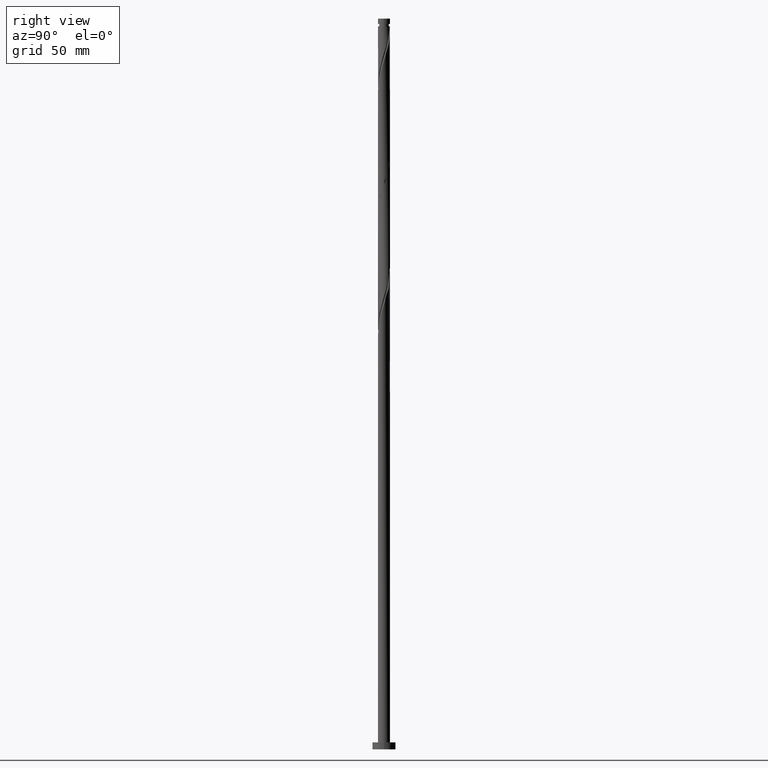
[diagram: clean part render]
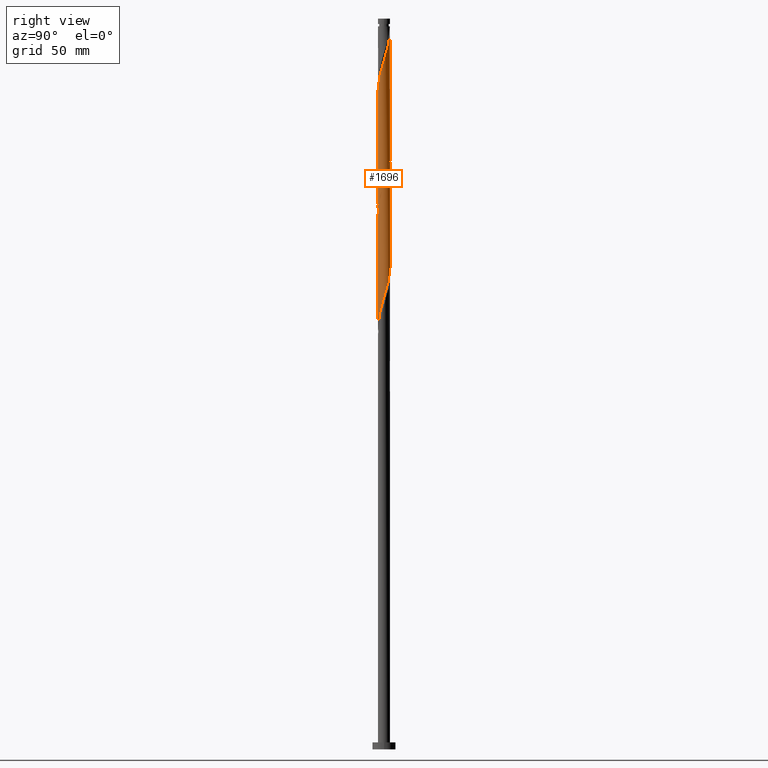
[diagram: same view with one face highlighted and labeled with its STEP entity id]
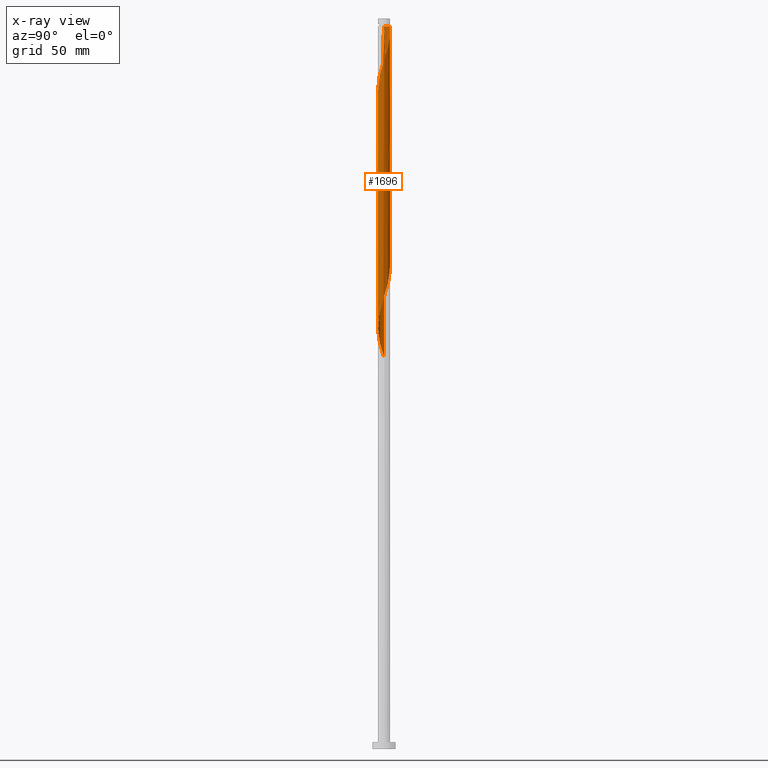
[diagram: x-ray of the same camera — body ghosted, the highlighted face saturated]
A machine part, right view. The second image highlights one B-rep face of the part: STEP entity #1696.
The next image is the same camera in x-ray: the body ghosted, the highlighted face saturated — about 0% of this face is hidden behind the body in this view.
In plain terms, the highlighted cylindrical surface (bore or boss wall) has radius 2.6 mm, axis along (-0, -0, -1).
Its self-contained STEP definition (entity closure, byte-faithful):
#2 = CARTESIAN_POINT ( 'NONE',  ( -1.894092998067532507, -1.805057120547471250, 276.9614839780932130 ) ) ;
#4 = CARTESIAN_POINT ( 'NONE',  ( -0.8044841181609289071, -2.489703756954709579, 179.4614839780932130 ) ) ;
#56 = VECTOR ( 'NONE', #551, 1000.000000000000000 ) ;
#57 = LINE ( 'NONE', #1705, #81 ) ;
#71 = CARTESIAN_POINT ( 'NONE',  ( 2.592198152564239688, 0.3554268301776134509, 248.8364839780932130 ) ) ;
#79 = CARTESIAN_POINT ( 'NONE',  ( 0.3554268301776135619, -2.592198152564239688, 235.7114839780932130 ) ) ;
#81 = VECTOR ( 'NONE', #1713, 1000.000000000000000 ) ;
#89 = CARTESIAN_POINT ( 'NONE',  ( -1.993166516690924706, -1.669517066921498705, 227.2739839780931561 ) ) ;
#100 = CARTESIAN_POINT ( 'NONE',  ( -0.5173934672955257108, 2.548000000000805620, 311.6489839780929856 ) ) ;
#104 = CARTESIAN_POINT ( 'NONE',  ( -1.338325226974176774, -2.248267128392905434, 177.5864839780931561 ) ) ;
#109 = FACE_OUTER_BOUND ( 'NONE', #1467, .T. ) ;
#110 = CIRCLE ( 'NONE', #230, 2.599999999999973888 ) ;
#116 = CARTESIAN_POINT ( 'NONE',  ( -2.489703756954709579, 0.8044841181609286851, 218.8364839780931845 ) ) ;
#125 = CARTESIAN_POINT ( 'NONE',  ( -2.600000000000004086, 1.682880964552032780E-15, 270.5994669001871102 ) ) ;
#127 = CARTESIAN_POINT ( 'NONE',  ( 0.9233338913868915920, -2.448116422636779976, 185.0864839780932130 ) ) ;
#139 = CARTESIAN_POINT ( 'NONE',  ( 0.8044841181609290182, 2.489703756954709579, 205.7114839780931845 ) ) ;
#147 = CARTESIAN_POINT ( 'NONE',  ( 0.5173934672954454417, -2.548000000000004039, 285.3989839780932130 ) ) ;
#149 = CARTESIAN_POINT ( 'NONE',  ( -2.606296243045289174, 0.2303028164299627534, 220.7114839780931845 ) ) ;
#158 = CARTESIAN_POINT ( 'NONE',  ( 0.9233338913868945896, 2.448116422636781753, 306.9614839780930993 ) ) ;
#175 = VECTOR ( 'NONE', #196, 1000.000000000000000 ) ;
#182 = CARTESIAN_POINT ( 'NONE',  ( -2.248267128392905434, 1.338325226974176552, 269.4614839780932130 ) ) ;
#187 = CARTESIAN_POINT ( 'NONE',  ( -1.894092998067529177, 1.805057120547469474, 267.5864839780932130 ) ) ;
#188 = EDGE_CURVE ( 'NONE', #354, #544, #1005, .T. ) ;
#196 = DIRECTION ( 'NONE',  ( -0.000000000000000000, -0.000000000000000000, -1.000000000000000000 ) ) ;
#206 = CARTESIAN_POINT ( 'NONE',  ( -1.071404672567552563, -2.368985442673807285, 231.0239839780931845 ) ) ;
#219 = CARTESIAN_POINT ( 'NONE',  ( 2.248267128392904990, -1.338325226974176774, 243.2114839780932698 ) ) ;
#227 = CARTESIAN_POINT ( 'NONE',  ( -1.571691173760822569, -2.071180063230216639, 229.1489839780931561 ) ) ;
#230 = AXIS2_PLACEMENT_3D ( 'NONE', #1166, #1736, #1478 ) ;
#237 = CARTESIAN_POINT ( 'NONE',  ( 1.669517066921498483, -1.993166516690925150, 240.3989839780931845 ) ) ;
#239 = EDGE_CURVE ( 'NONE', #1625, #1253, #57, .T. ) ;
#246 = CARTESIAN_POINT ( 'NONE',  ( -1.071404672567552563, -2.368985442673807285, 178.5239839780931845 ) ) ;
#255 = CARTESIAN_POINT ( 'NONE',  ( 2.071180063230221524, 1.571691173760824567, 302.2739839780931561 ) ) ;
#256 = CARTESIAN_POINT ( 'NONE',  ( -2.600000000000000089, 3.041126355010900916E-15, 168.9485010559992304 ) ) ;
#262 = CARTESIAN_POINT ( 'NONE',  ( -2.599999999999999645, -9.739067222795645359E-16, 273.9485010559992020 ) ) ;
#266 = CARTESIAN_POINT ( 'NONE',  ( 2.368985442673811725, 1.071404672567553007, 300.3989839780932130 ) ) ;
#269 = CARTESIAN_POINT ( 'NONE',  ( 1.805057120547469696, 1.894092998067528510, 201.9614839780931845 ) ) ;
#274 = CARTESIAN_POINT ( 'NONE',  ( -2.248267128392909431, -1.338325226974177440, 275.0864839780930424 ) ) ;
#275 = CARTESIAN_POINT ( 'NONE',  ( -1.669517066921498927, 1.993166516690924706, 214.1489839780931845 ) ) ;
#283 = CARTESIAN_POINT ( 'NONE',  ( -2.520157287600509832, -0.6393803607822529100, 171.0239839780931845 ) ) ;
#315 = CARTESIAN_POINT ( 'NONE',  ( -2.599999999999999645, -9.739067222795645359E-16, 273.9485010559992020 ) ) ;
#320 = EDGE_CURVE ( 'NONE', #1316, #544, #468, .T. ) ;
#352 = CARTESIAN_POINT ( 'NONE',  ( 1.805057120547469696, 1.894092998067528510, 254.4614839780932130 ) ) ;
#354 = VERTEX_POINT ( 'NONE', #905 ) ;
#357 = CARTESIAN_POINT ( 'NONE',  ( 2.489703756954709579, -0.8044841181609289071, 245.0864839780931845 ) ) ;
#364 = CARTESIAN_POINT ( 'NONE',  ( 0.06256200687382534875, -2.599247197804763765, 234.7739839780931277 ) ) ;
#371 = CARTESIAN_POINT ( 'NONE',  ( 2.547999999999999154, -0.5173934672954457747, 246.0239839780931277 ) ) ;
#380 = CARTESIAN_POINT ( 'NONE',  ( 2.314696167735579735, 1.184137513581179801, 251.6489839780932130 ) ) ;
#385 = CARTESIAN_POINT ( 'NONE',  ( -1.669517066921501369, -1.993166516690927148, 277.8989839780930993 ) ) ;
#386 = CARTESIAN_POINT ( 'NONE',  ( 2.547999999999999154, -0.5173934672954457747, 193.5239839780932130 ) ) ;
#395 = CARTESIAN_POINT ( 'NONE',  ( 2.181275912834383934, -1.444941135775472008, 291.9614839780931561 ) ) ;
#398 = CARTESIAN_POINT ( 'NONE',  ( -1.805057120547469474, -1.894092998067529177, 175.7114839780932414 ) ) ;
#404 = CARTESIAN_POINT ( 'NONE',  ( -2.489703756954713576, -0.8044841181609289071, 273.2114839780930993 ) ) ;
#408 = VERTEX_POINT ( 'NONE', #1733 ) ;
#412 = CARTESIAN_POINT ( 'NONE',  ( -0.5173934672955257108, 2.548000000000805620, 311.6489839780929856 ) ) ;
#414 = CARTESIAN_POINT ( 'NONE',  ( -1.894092998067529177, 1.805057120547469474, 215.0864839780931845 ) ) ;
#421 = CARTESIAN_POINT ( 'NONE',  ( 2.548000000000004039, 0.5173934672954453307, 298.5239839780931561 ) ) ;
#424 = EDGE_CURVE ( 'NONE', #544, #1253, #843, .T. ) ;
#467 = CARTESIAN_POINT ( 'NONE',  ( -1.184137513581180023, 2.314696167735580179, 264.7739839780932130 ) ) ;
#468 =( BOUNDED_CURVE ( )  B_SPLINE_CURVE ( 2, ( #315, #1149, #871, #879, #1434, #182, #1443, #187, #742, #599, #467, #1310, #618, #1631, #626, #1172, #1739, #1614, #1334, #900, #761, #352, #484, #1038, #380, #512, #768, #71, #1756, #1748, #1314 ),
 .UNSPECIFIED., .F., .T. ) 
 B_SPLINE_CURVE_WITH_KNOTS ( ( 3, 2, 2, 2, 2, 2, 2, 2, 2, 2, 2, 2, 2, 2, 2, 3 ),
 ( 0.4295303401299217505, 0.4375000000000000000, 0.4464285714285714524, 0.4553571428571428492, 0.4642857142857143016, 0.4732142857142856984, 0.4821428571428571508, 0.4910714285714285476, 0.5000000000000000000, 0.5089285714285713969, 0.5178571428571429047, 0.5267857142857143016, 0.5357142857142856984, 0.5446428571428570953, 0.5535714285714286031, 0.5545303401299218615 ),
 .UNSPECIFIED. ) 
 CURVE ( )  GEOMETRIC_REPRESENTATION_ITEM ( )  RATIONAL_B_SPLINE_CURVE ( ( 0.9079949616362197329, 0.9039886423360823375, 0.9090909090909493617, 0.9033747362666241232, 0.9090909090909493617, 0.9033747362666241232, 0.9090909090909493617, 0.9033747362666241232, 0.9090909090909493617, 0.9033747362666241232, 0.9090909090909493617, 0.9033747362666241232, 0.9090909090909493617, 0.9033747362666241232, 0.9090909090909493617, 0.9033747362666241232, 0.9090909090909493617, 0.9033747362666241232, 0.9090909090909493617, 0.9033747362666241232, 0.9090909090909493617, 0.9033747362666241232, 0.9090909090909493617, 0.9033747362666241232, 0.9090909090909493617, 0.9033747362666241232, 0.9090909090909493617, 0.9033747362666241232, 0.9090909090909493617, 0.9084770030214912584, 0.9079949616362197329 ) ) 
 REPRESENTATION_ITEM ( '' )  );
#484 = CARTESIAN_POINT ( 'NONE',  ( 1.993166516690925150, 1.669517066921498483, 253.5239839780931277 ) ) ;
#497 = CARTESIAN_POINT ( 'NONE',  ( 2.599999999999999645, 3.940404209682836032E-15, 247.6985010559992304 ) ) ;
#512 = CARTESIAN_POINT ( 'NONE',  ( 2.448116422636779976, 0.9233338913868913700, 250.7114839780932414 ) ) ;
#520 = CARTESIAN_POINT ( 'NONE',  ( -2.368985442673811725, -1.071404672567553451, 274.1489839780931561 ) ) ;
#521 = CARTESIAN_POINT ( 'NONE',  ( 2.181275912834381270, 1.444941135775468677, 200.0864839780932130 ) ) ;
#526 = ORIENTED_EDGE ( 'NONE', *, *, #320, .F. ) ;
#530 = CARTESIAN_POINT ( 'NONE',  ( 1.071404672567553229, -2.368985442673811725, 287.2739839780930993 ) ) ;
#533 = CARTESIAN_POINT ( 'NONE',  ( 1.184137513581179801, -2.314696167735579735, 186.0239839780931277 ) ) ;
#539 = CARTESIAN_POINT ( 'NONE',  ( 2.606296243045292726, 0.2303028164299620595, 297.5864839780930993 ) ) ;
#540 = CARTESIAN_POINT ( 'NONE',  ( 2.599247197804763765, 0.06256200687382520997, 195.3989839780931277 ) ) ;
#544 = VERTEX_POINT ( 'NONE', #1386 ) ;
#546 = AXIS2_PLACEMENT_3D ( 'NONE', #708, #1706, #1554 ) ;
#547 = CARTESIAN_POINT ( 'NONE',  ( 1.338325226974177218, -2.248267128392909431, 288.2114839780930993 ) ) ;
#551 = DIRECTION ( 'NONE',  ( -0.000000000000000000, -0.000000000000000000, -1.000000000000000000 ) ) ;
#557 = CARTESIAN_POINT ( 'NONE',  ( 0.3554268301776155048, 2.592198152564242797, 308.8364839780931561 ) ) ;
#558 = CARTESIAN_POINT ( 'NONE',  ( -2.248267128392905434, 1.338325226974176552, 216.9614839780932414 ) ) ;
#581 = EDGE_CURVE ( 'NONE', #408, #1316, #1242, .T. ) ;
#599 = CARTESIAN_POINT ( 'NONE',  ( -1.444941135775469343, 2.181275912834380826, 265.7114839780931561 ) ) ;
#608 = CARTESIAN_POINT ( 'NONE',  ( 2.600000000000000089, 3.184081677783118191E-16, 315.0000000000000000 ) ) ;
#618 = CARTESIAN_POINT ( 'NONE',  ( -0.6393803607822529100, 2.520157287600509832, 262.8989839780931561 ) ) ;
#626 = CARTESIAN_POINT ( 'NONE',  ( -0.06256200687382565406, 2.599247197804763765, 261.0239839780931561 ) ) ;
#636 = CARTESIAN_POINT ( 'NONE',  ( 1.444941135775468899, -2.181275912834381270, 239.4614839780931561 ) ) ;
#661 = CARTESIAN_POINT ( 'NONE',  ( 1.338325226974176996, 2.248267128392904990, 203.8364839780931845 ) ) ;
#667 = CYLINDRICAL_SURFACE ( 'NONE', #546, 2.600000000000000089 ) ;
#673 = CARTESIAN_POINT ( 'NONE',  ( -0.06256200687382565406, 2.599247197804763765, 208.5239839780931277 ) ) ;
#684 = CARTESIAN_POINT ( 'NONE',  ( -2.547999999999999154, 0.5173934672954455527, 219.7739839780931561 ) ) ;
#691 = CARTESIAN_POINT ( 'NONE',  ( 1.571691173760824567, -2.071180063230221524, 289.1489839780930993 ) ) ;
#695 = CARTESIAN_POINT ( 'NONE',  ( 1.571691173760822791, 2.071180063230216639, 202.8989839780930708 ) ) ;
#701 = CARTESIAN_POINT ( 'NONE',  ( 1.894092998067532507, 1.805057120547471028, 303.2114839780930993 ) ) ;
#702 = CARTESIAN_POINT ( 'NONE',  ( -2.600000000000000089, -0.03128553263261939915, 169.0488637442243487 ) ) ;
#708 = CARTESIAN_POINT ( 'NONE',  ( 0.000000000000000000, 0.000000000000000000, 315.0000000000000000 ) ) ;
#742 = CARTESIAN_POINT ( 'NONE',  ( -1.669517066921498927, 1.993166516690924706, 266.6489839780930993 ) ) ;
#761 = CARTESIAN_POINT ( 'NONE',  ( 1.571691173760822791, 2.071180063230216639, 255.3989839780931277 ) ) ;
#768 = CARTESIAN_POINT ( 'NONE',  ( 2.520157287600509388, 0.6393803607822524659, 249.7739839780931561 ) ) ;
#771 = ORIENTED_EDGE ( 'NONE', *, *, #188, .T. ) ;
#776 = CARTESIAN_POINT ( 'NONE',  ( 1.184137513581179801, -2.314696167735579735, 238.5239839780931561 ) ) ;
#783 = CARTESIAN_POINT ( 'NONE',  ( -1.805057120547469474, -1.894092998067529177, 228.2114839780931845 ) ) ;
#790 = CARTESIAN_POINT ( 'NONE',  ( -2.520157287600509832, -0.6393803607822529100, 223.5239839780931845 ) ) ;
#800 = CARTESIAN_POINT ( 'NONE',  ( -2.368985442673807285, 1.071404672567552341, 217.8989839780931277 ) ) ;
#808 = CARTESIAN_POINT ( 'NONE',  ( 1.669517066921501369, 1.993166516690927148, 304.1489839780930993 ) ) ;
#809 = CARTESIAN_POINT ( 'NONE',  ( 1.444941135775468899, -2.181275912834381270, 186.9614839780931845 ) ) ;
#817 = CARTESIAN_POINT ( 'NONE',  ( -2.548000000000004039, -0.5173934672954456637, 272.2739839780930993 ) ) ;
#820 = CARTESIAN_POINT ( 'NONE',  ( -1.444941135775469343, 2.181275912834380826, 213.2114839780931845 ) ) ;
#829 = CARTESIAN_POINT ( 'NONE',  ( -2.071180063230221080, -1.571691173760824789, 276.0239839780931561 ) ) ;
#830 = CARTESIAN_POINT ( 'NONE',  ( -0.9233338913868922582, 2.448116422636779976, 211.3364839780932130 ) ) ;
#837 = CARTESIAN_POINT ( 'NONE',  ( -0.06256200687382634795, -2.599247197804768650, 283.5239839780931561 ) ) ;
#839 = CARTESIAN_POINT ( 'NONE',  ( 1.669517066921498483, -1.993166516690925150, 187.8989839780931845 ) ) ;
#843 =( BOUNDED_CURVE ( )  B_SPLINE_CURVE ( 2, ( #497, #925, #371, #357, #1178, #219, #1475, #1028, #237, #636, #776, #1044, #1323, #79, #364, #910, #1764, #1482, #206, #1196, #227, #783, #89, #1052, #1623, #1491, #790, #1342, #1062, #149, #684, #116, #800, #558, #1348, #414, #275, #820, #1098, #830, #1372, #1382, #673, #1238, #1649, #139, #1521, #661, #695, #269, #1639, #521, #1228, #1794, #1088, #1804, #540, #1658, #386, #1498, #1784, #1206, #1215, #965, #839, #809, #533, #127, #1775, #1670, #1393, #1069, #932, #4, #246, #104, #1531, #398, #1078, #942, #1514, #1506, #283, #1250, #1107, #702, #256 ),
 .UNSPECIFIED., .F., .T. ) 
 B_SPLINE_CURVE_WITH_KNOTS ( ( 3, 2, 2, 2, 2, 2, 2, 2, 2, 2, 2, 2, 2, 2, 2, 2, 2, 2, 2, 2, 2, 2, 2, 2, 2, 2, 2, 2, 2, 2, 2, 2, 2, 2, 2, 2, 2, 2, 2, 2, 2, 2, 2, 3 ),
 ( 0.5545303401299218615, 0.5625000000000000000, 0.5714285714285713969, 0.5803571428571429047, 0.5892857142857143016, 0.5982142857142856984, 0.6071428571428570953, 0.6160714285714286031, 0.6250000000000000000, 0.6339285714285713969, 0.6428571428571429047, 0.6517857142857143016, 0.6607142857142856984, 0.6696428571428570953, 0.6785714285714286031, 0.6875000000000000000, 0.6964285714285713969, 0.7053571428571429047, 0.7142857142857143016, 0.7232142857142856984, 0.7321428571428570953, 0.7410714285714286031, 0.7500000000000000000, 0.7589285714285713969, 0.7678571428571429047, 0.7767857142857143016, 0.7857142857142856984, 0.7946428571428570953, 0.8035714285714286031, 0.8125000000000000000, 0.8214285714285713969, 0.8303571428571429047, 0.8392857142857143016, 0.8482142857142856984, 0.8571428571428570953, 0.8660714285714286031, 0.8750000000000000000, 0.8839285714285713969, 0.8928571428571429047, 0.9017857142857143016, 0.9107142857142856984, 0.9196428571428570953, 0.9285714285714286031, 0.9295303401299218615 ),
 .UNSPECIFIED. ) 
 CURVE ( )  GEOMETRIC_REPRESENTATION_ITEM ( )  RATIONAL_B_SPLINE_CURVE ( ( 0.9079949616362197329, 0.9039886423360823375, 0.9090909090909493617, 0.9033747362666241232, 0.9090909090909493617, 0.9033747362666241232, 0.9090909090909493617, 0.9033747362666241232, 0.9090909090909493617, 0.9033747362666241232, 0.9090909090909493617, 0.9033747362666241232, 0.9090909090909493617, 0.9033747362666241232, 0.9090909090909493617, 0.9033747362666241232, 0.9090909090909493617, 0.9033747362666241232, 0.9090909090909493617, 0.9033747362666241232, 0.9090909090909493617, 0.9033747362666241232, 0.9090909090909493617, 0.9033747362666241232, 0.9090909090909493617, 0.9033747362666241232, 0.9090909090909493617, 0.9033747362666241232, 0.9090909090909493617, 0.9033747362666241232, 0.9090909090909493617, 0.9033747362666241232, 0.9090909090909493617, 0.9033747362666241232, 0.9090909090909493617, 0.9033747362666241232, 0.9090909090909493617, 0.9033747362666241232, 0.9090909090909493617, 0.9033747362666241232, 0.9090909090909493617, 0.9033747362666241232, 0.9090909090909493617, 0.9033747362666241232, 0.9090909090909493617, 0.9033747362666241232, 0.9090909090909493617, 0.9033747362666241232, 0.9090909090909493617, 0.9033747362666241232, 0.9090909090909493617, 0.9033747362666241232, 0.9090909090909493617, 0.9033747362666241232, 0.9090909090909493617, 0.9033747362666241232, 0.9090909090909493617, 0.9033747362666241232, 0.9090909090909493617, 0.9033747362666241232, 0.9090909090909493617, 0.9033747362666241232, 0.9090909090909493617, 0.9033747362666241232, 0.9090909090909493617, 0.9033747362666241232, 0.9090909090909493617, 0.9033747362666241232, 0.9090909090909493617, 0.9033747362666241232, 0.9090909090909493617, 0.9033747362666241232, 0.9090909090909493617, 0.9033747362666241232, 0.9090909090909493617, 0.9033747362666241232, 0.9090909090909493617, 0.9033747362666241232, 0.9090909090909493617, 0.9033747362666241232, 0.9090909090909493617, 0.9033747362666241232, 0.9090909090909493617, 0.9033747362666241232, 0.9090909090909493617, 0.9084770030214912584, 0.9079949616362197329 ) ) 
 REPRESENTATION_ITEM ( '' )  );
#851 = CARTESIAN_POINT ( 'NONE',  ( 1.805057120547471250, -1.894092998067532507, 290.0864839780930993 ) ) ;
#856 = ORIENTED_EDGE ( 'NONE', *, *, #424, .F. ) ;
#871 = CARTESIAN_POINT ( 'NONE',  ( -2.547999999999999154, 0.5173934672954455527, 272.2739839780931561 ) ) ;
#879 = CARTESIAN_POINT ( 'NONE',  ( -2.489703756954709579, 0.8044841181609286851, 271.3364839780932130 ) ) ;
#900 = CARTESIAN_POINT ( 'NONE',  ( 1.338325226974176996, 2.248267128392904990, 256.3364839780932130 ) ) ;
#905 = CARTESIAN_POINT ( 'NONE',  ( 2.600000000000000089, 3.184081677783118191E-16, 311.6489839780931561 ) ) ;
#910 = CARTESIAN_POINT ( 'NONE',  ( -0.2303028164299629199, -2.606296243045289174, 233.8364839780932130 ) ) ;
#925 = CARTESIAN_POINT ( 'NONE',  ( 2.600000000000000533, -0.2613098319673914371, 246.8602299770356296 ) ) ;
#931 = CARTESIAN_POINT ( 'NONE',  ( -0.3554268301776152272, -2.592198152564243241, 282.5864839780932130 ) ) ;
#932 = CARTESIAN_POINT ( 'NONE',  ( -0.5173934672954456637, -2.547999999999999154, 180.3989839780931561 ) ) ;
#938 = CARTESIAN_POINT ( 'NONE',  ( 2.314696167735583288, -1.184137513581183132, 292.8989839780931561 ) ) ;
#942 = CARTESIAN_POINT ( 'NONE',  ( -2.181275912834380826, -1.444941135775468899, 173.8364839780932130 ) ) ;
#958 = ORIENTED_EDGE ( 'NONE', *, *, #581, .F. ) ;
#962 = CARTESIAN_POINT ( 'NONE',  ( 2.448116422636782197, -0.9233338913868941455, 293.8364839780932130 ) ) ;
#965 = CARTESIAN_POINT ( 'NONE',  ( 1.894092998067529177, -1.805057120547469474, 188.8364839780932130 ) ) ;
#974 = CARTESIAN_POINT ( 'NONE',  ( 0.2303028164299621983, -2.606296243045292726, 284.4614839780931561 ) ) ;
#1005 = LINE ( 'NONE', #608, #175 ) ;
#1028 = CARTESIAN_POINT ( 'NONE',  ( 1.894092998067529177, -1.805057120547469474, 241.3364839780931845 ) ) ;
#1031 = EDGE_CURVE ( 'NONE', #1625, #1643, #1439, .T. ) ;
#1038 = CARTESIAN_POINT ( 'NONE',  ( 2.181275912834381270, 1.444941135775468677, 252.5864839780931277 ) ) ;
#1044 = CARTESIAN_POINT ( 'NONE',  ( 0.9233338913868915920, -2.448116422636779976, 237.5864839780931561 ) ) ;
#1052 = CARTESIAN_POINT ( 'NONE',  ( -2.181275912834380826, -1.444941135775468899, 226.3364839780931277 ) ) ;
#1055 = ORIENTED_EDGE ( 'NONE', *, *, #188, .F. ) ;
#1062 = CARTESIAN_POINT ( 'NONE',  ( -2.599247197804763765, -0.06256200687382544590, 221.6489839780931561 ) ) ;
#1068 = CARTESIAN_POINT ( 'NONE',  ( 2.489703756954713576, 0.8044841181609284630, 299.4614839780930993 ) ) ;
#1069 = CARTESIAN_POINT ( 'NONE',  ( -0.2303028164299629199, -2.606296243045289174, 181.3364839780931845 ) ) ;
#1078 = CARTESIAN_POINT ( 'NONE',  ( -1.993166516690924706, -1.669517066921498705, 174.7739839780930708 ) ) ;
#1088 = CARTESIAN_POINT ( 'NONE',  ( 2.520157287600509388, 0.6393803607822524659, 197.2739839780931845 ) ) ;
#1093 = ORIENTED_EDGE ( 'NONE', *, *, #1191, .T. ) ;
#1095 = CARTESIAN_POINT ( 'NONE',  ( 2.520157287600512941, -0.6393803607822544643, 294.7739839780930424 ) ) ;
#1098 = CARTESIAN_POINT ( 'NONE',  ( -1.184137513581180023, 2.314696167735580179, 212.2739839780931561 ) ) ;
#1107 = CARTESIAN_POINT ( 'NONE',  ( -2.599247197804763765, -0.06256200687382544590, 169.1489839780931561 ) ) ;
#1149 = CARTESIAN_POINT ( 'NONE',  ( -2.600000000000000977, 0.2613098319673891057, 273.1102299770356012 ) ) ;
#1166 = CARTESIAN_POINT ( 'NONE',  ( 0.000000000000000000, 0.000000000000000000, 311.6489839780931561 ) ) ;
#1172 = CARTESIAN_POINT ( 'NONE',  ( 0.2303028164299626424, 2.606296243045289618, 260.0864839780931561 ) ) ;
#1178 = CARTESIAN_POINT ( 'NONE',  ( 2.368985442673807285, -1.071404672567552563, 244.1489839780931277 ) ) ;
#1191 = EDGE_CURVE ( 'NONE', #408, #1643, #110, .T. ) ;
#1196 = CARTESIAN_POINT ( 'NONE',  ( -1.338325226974176774, -2.248267128392905434, 230.0864839780931845 ) ) ;
#1206 = CARTESIAN_POINT ( 'NONE',  ( 2.248267128392904990, -1.338325226974176774, 190.7114839780932130 ) ) ;
#1214 = CARTESIAN_POINT ( 'NONE',  ( -0.9233338913868941455, -2.448116422636782197, 280.7114839780931561 ) ) ;
#1215 = CARTESIAN_POINT ( 'NONE',  ( 2.071180063230216639, -1.571691173760822569, 189.7739839780931561 ) ) ;
#1228 = CARTESIAN_POINT ( 'NONE',  ( 2.314696167735579735, 1.184137513581179801, 199.1489839780931561 ) ) ;
#1231 = ORIENTED_EDGE ( 'NONE', *, *, #1031, .F. ) ;
#1238 = CARTESIAN_POINT ( 'NONE',  ( 0.2303028164299626424, 2.606296243045289618, 207.5864839780931845 ) ) ;
#1242 = LINE ( 'NONE', #1806, #56 ) ;
#1248 = CARTESIAN_POINT ( 'NONE',  ( -2.600000000000004086, -0.2613098319673943237, 271.4377379791506542 ) ) ;
#1250 = CARTESIAN_POINT ( 'NONE',  ( -2.592198152564239688, -0.3554268301776137839, 170.0864839780931561 ) ) ;
#1253 = VERTEX_POINT ( 'NONE', #1602 ) ;
#1310 = CARTESIAN_POINT ( 'NONE',  ( -0.9233338913868922582, 2.448116422636779976, 263.8364839780931561 ) ) ;
#1314 = CARTESIAN_POINT ( 'NONE',  ( 2.599999999999999645, 3.940404209682836032E-15, 247.6985010559992304 ) ) ;
#1316 = VERTEX_POINT ( 'NONE', #262 ) ;
#1323 = CARTESIAN_POINT ( 'NONE',  ( 0.6393803607822527990, -2.520157287600509388, 236.6489839780931561 ) ) ;
#1334 = CARTESIAN_POINT ( 'NONE',  ( 1.071404672567552785, 2.368985442673806396, 257.2739839780932130 ) ) ;
#1342 = CARTESIAN_POINT ( 'NONE',  ( -2.592198152564239688, -0.3554268301776137839, 222.5864839780932130 ) ) ;
#1348 = CARTESIAN_POINT ( 'NONE',  ( -2.071180063230217083, 1.571691173760822346, 216.0239839780931561 ) ) ;
#1358 = CARTESIAN_POINT ( 'NONE',  ( 1.184137513581183132, 2.314696167735583288, 306.0239839780931561 ) ) ;
#1369 = CARTESIAN_POINT ( 'NONE',  ( -0.2303028164299655567, 2.606296243045292726, 310.7114839780931561 ) ) ;
#1372 = CARTESIAN_POINT ( 'NONE',  ( -0.6393803607822529100, 2.520157287600509832, 210.3989839780931561 ) ) ;
#1380 = CARTESIAN_POINT ( 'NONE',  ( -1.184137513581183132, -2.314696167735583288, 279.7739839780932130 ) ) ;
#1382 = CARTESIAN_POINT ( 'NONE',  ( -0.3554268301776140060, 2.592198152564239688, 209.4614839780932130 ) ) ;
#1386 = CARTESIAN_POINT ( 'NONE',  ( 2.599999999999999645, 3.940404209682836032E-15, 247.6985010559992304 ) ) ;
#1393 = CARTESIAN_POINT ( 'NONE',  ( 0.06256200687382534875, -2.599247197804763765, 182.2739839780931277 ) ) ;
#1407 = CARTESIAN_POINT ( 'NONE',  ( 1.993166516690927148, -1.669517066921501369, 291.0239839780932130 ) ) ;
#1434 = CARTESIAN_POINT ( 'NONE',  ( -2.368985442673807285, 1.071404672567552341, 270.3989839780931561 ) ) ;
#1439 =( BOUNDED_CURVE ( )  B_SPLINE_CURVE ( 2, ( #125, #1248, #817, #404, #520, #274, #829, #2, #385, #1770, #1380, #1214, #1538, #931, #837, #974, #147, #1647, #530, #547, #691, #851, #1407, #395, #938, #962, #1095, #1512, #1668, #539, #421, #1068, #266, #1505, #255, #701, #808, #1678, #1358, #158, #1529, #557, #1657, #1369, #412 ),
 .UNSPECIFIED., .F., .T. ) 
 B_SPLINE_CURVE_WITH_KNOTS ( ( 3, 2, 2, 2, 2, 2, 2, 2, 2, 2, 2, 2, 2, 2, 2, 2, 2, 2, 2, 2, 2, 2, 3 ),
 ( 0.5545303401299219725, 0.5625000000000000000, 0.5714285714285713969, 0.5803571428571427937, 0.5892857142857143016, 0.5982142857142856984, 0.6071428571428572063, 0.6160714285714286031, 0.6250000000000000000, 0.6339285714285713969, 0.6428571428571427937, 0.6517857142857144126, 0.6607142857142858094, 0.6696428571428573173, 0.6785714285714287142, 0.6875000000000001110, 0.6964285714285715079, 0.7053571428571429047, 0.7142857142857144126, 0.7232142857142858094, 0.7321428571428573173, 0.7410714285714287142, 0.7500000000000001110 ),
 .UNSPECIFIED. ) 
 CURVE ( )  GEOMETRIC_REPRESENTATION_ITEM ( )  RATIONAL_B_SPLINE_CURVE ( ( 0.9079949616362259501, 0.9039886423360888879, 0.9090909090909558010, 0.9033747362666306735, 0.9090909090909558010, 0.9033747362666306735, 0.9090909090909558010, 0.9033747362666306735, 0.9090909090909558010, 0.9033747362666306735, 0.9090909090909558010, 0.9033747362666306735, 0.9090909090909558010, 0.9033747362666306735, 0.9090909090909558010, 0.9033747362666306735, 0.9090909090909558010, 0.9033747362666306735, 0.9090909090909558010, 0.9033747362666306735, 0.9090909090909558010, 0.9033747362666306735, 0.9090909090909558010, 0.9033747362666306735, 0.9090909090909558010, 0.9033747362666306735, 0.9090909090909558010, 0.9033747362666306735, 0.9090909090909558010, 0.9033747362666306735, 0.9090909090909558010, 0.9033747362666306735, 0.9090909090909558010, 0.9033747362666306735, 0.9090909090909558010, 0.9033747362666306735, 0.9090909090909558010, 0.9033747362666306735, 0.9090909090909558010, 0.9033747362666306735, 0.9090909090909558010, 0.9033747362666306735, 0.9090909090909558010, 0.9033747362666305625, 0.9090909090909559120 ) ) 
 REPRESENTATION_ITEM ( '' )  );
#1443 = CARTESIAN_POINT ( 'NONE',  ( -2.071180063230217083, 1.571691173760822346, 268.5239839780931561 ) ) ;
#1467 = EDGE_LOOP ( 'NONE', ( #958, #1093, #1231, #1685, #856, #1055, #771, #526 ) ) ;
#1475 = CARTESIAN_POINT ( 'NONE',  ( 2.071180063230216639, -1.571691173760822569, 242.2739839780932130 ) ) ;
#1478 = DIRECTION ( 'NONE',  ( -1.000000000000000000, 0.000000000000000000, 0.000000000000000000 ) ) ;
#1482 = CARTESIAN_POINT ( 'NONE',  ( -0.8044841181609289071, -2.489703756954709579, 231.9614839780931845 ) ) ;
#1491 = CARTESIAN_POINT ( 'NONE',  ( -2.448116422636779976, -0.9233338913868915920, 224.4614839780931845 ) ) ;
#1498 = CARTESIAN_POINT ( 'NONE',  ( 2.489703756954709579, -0.8044841181609289071, 192.5864839780931277 ) ) ;
#1505 = CARTESIAN_POINT ( 'NONE',  ( 2.248267128392909431, 1.338325226974177218, 301.3364839780930993 ) ) ;
#1506 = CARTESIAN_POINT ( 'NONE',  ( -2.448116422636779976, -0.9233338913868915920, 171.9614839780931561 ) ) ;
#1512 = CARTESIAN_POINT ( 'NONE',  ( 2.592198152564242797, -0.3554268301776152827, 295.7114839780931561 ) ) ;
#1514 = CARTESIAN_POINT ( 'NONE',  ( -2.314696167735580179, -1.184137513581180023, 172.8989839780931561 ) ) ;
#1521 = CARTESIAN_POINT ( 'NONE',  ( 1.071404672567552785, 2.368985442673806396, 204.7739839780931845 ) ) ;
#1529 = CARTESIAN_POINT ( 'NONE',  ( 0.6393803607822547974, 2.520157287600512941, 307.8989839780931561 ) ) ;
#1531 = CARTESIAN_POINT ( 'NONE',  ( -1.571691173760822569, -2.071180063230216639, 176.6489839780931277 ) ) ;
#1538 = CARTESIAN_POINT ( 'NONE',  ( -0.6393803607822544643, -2.520157287600512941, 281.6489839780930993 ) ) ;
#1554 = DIRECTION ( 'NONE',  ( -1.000000000000000000, 0.000000000000000000, 0.000000000000000000 ) ) ;
#1602 = CARTESIAN_POINT ( 'NONE',  ( -2.600000000000000089, 3.041126355010901310E-15, 168.9485010559992304 ) ) ;
#1614 = CARTESIAN_POINT ( 'NONE',  ( 0.8044841181609290182, 2.489703756954709579, 258.2114839780930993 ) ) ;
#1623 = CARTESIAN_POINT ( 'NONE',  ( -2.314696167735580179, -1.184137513581180023, 225.3989839780931277 ) ) ;
#1625 = VERTEX_POINT ( 'NONE', #1644 ) ;
#1631 = CARTESIAN_POINT ( 'NONE',  ( -0.3554268301776140060, 2.592198152564239688, 261.9614839780932130 ) ) ;
#1639 = CARTESIAN_POINT ( 'NONE',  ( 1.993166516690925150, 1.669517066921498483, 201.0239839780931277 ) ) ;
#1643 = VERTEX_POINT ( 'NONE', #100 ) ;
#1644 = CARTESIAN_POINT ( 'NONE',  ( -2.600000000000004086, 1.682880964552032780E-15, 270.5994669001871102 ) ) ;
#1647 = CARTESIAN_POINT ( 'NONE',  ( 0.8044841181609286851, -2.489703756954713576, 286.3364839780931561 ) ) ;
#1649 = CARTESIAN_POINT ( 'NONE',  ( 0.5173934672954459968, 2.547999999999999154, 206.6489839780931561 ) ) ;
#1657 = CARTESIAN_POINT ( 'NONE',  ( 0.06256200687382688919, 2.599247197804768206, 309.7739839780930993 ) ) ;
#1658 = CARTESIAN_POINT ( 'NONE',  ( 2.606296243045289174, -0.2303028164299631420, 194.4614839780932414 ) ) ;
#1668 = CARTESIAN_POINT ( 'NONE',  ( 2.599247197804768650, -0.06256200687382657000, 296.6489839780931561 ) ) ;
#1670 = CARTESIAN_POINT ( 'NONE',  ( 0.3554268301776135619, -2.592198152564239688, 183.2114839780931845 ) ) ;
#1678 = CARTESIAN_POINT ( 'NONE',  ( 1.444941135775472008, 2.181275912834383046, 305.0864839780930993 ) ) ;
#1685 = ORIENTED_EDGE ( 'NONE', *, *, #239, .T. ) ;
#1696 = ADVANCED_FACE ( 'NONE', ( #109 ), #667, .T. ) ;
#1705 = CARTESIAN_POINT ( 'NONE',  ( -2.600000000000000089, 0.000000000000000000, 315.0000000000000000 ) ) ;
#1706 = DIRECTION ( 'NONE',  ( -0.000000000000000000, -0.000000000000000000, -1.000000000000000000 ) ) ;
#1713 = DIRECTION ( 'NONE',  ( -0.000000000000000000, -0.000000000000000000, -1.000000000000000000 ) ) ;
#1733 = CARTESIAN_POINT ( 'NONE',  ( -2.599999999999973888, 0.000000000000000000, 311.6489839780931561 ) ) ;
#1736 = DIRECTION ( 'NONE',  ( -0.000000000000000000, -0.000000000000000000, -1.000000000000000000 ) ) ;
#1739 = CARTESIAN_POINT ( 'NONE',  ( 0.5173934672954459968, 2.547999999999999154, 259.1489839780931561 ) ) ;
#1748 = CARTESIAN_POINT ( 'NONE',  ( 2.600000000000000089, 0.03128553263261915629, 247.7988637442243203 ) ) ;
#1756 = CARTESIAN_POINT ( 'NONE',  ( 2.599247197804763765, 0.06256200687382520997, 247.8989839780931277 ) ) ;
#1764 = CARTESIAN_POINT ( 'NONE',  ( -0.5173934672954456637, -2.547999999999999154, 232.8989839780931845 ) ) ;
#1770 = CARTESIAN_POINT ( 'NONE',  ( -1.444941135775471563, -2.181275912834383934, 278.8364839780932130 ) ) ;
#1775 = CARTESIAN_POINT ( 'NONE',  ( 0.6393803607822527990, -2.520157287600509388, 184.1489839780931845 ) ) ;
#1784 = CARTESIAN_POINT ( 'NONE',  ( 2.368985442673807285, -1.071404672567552563, 191.6489839780931561 ) ) ;
#1794 = CARTESIAN_POINT ( 'NONE',  ( 2.448116422636779976, 0.9233338913868913700, 198.2114839780931845 ) ) ;
#1804 = CARTESIAN_POINT ( 'NONE',  ( 2.592198152564239688, 0.3554268301776134509, 196.3364839780931845 ) ) ;
#1806 = CARTESIAN_POINT ( 'NONE',  ( -2.600000000000000089, 0.000000000000000000, 315.0000000000000000 ) ) ;